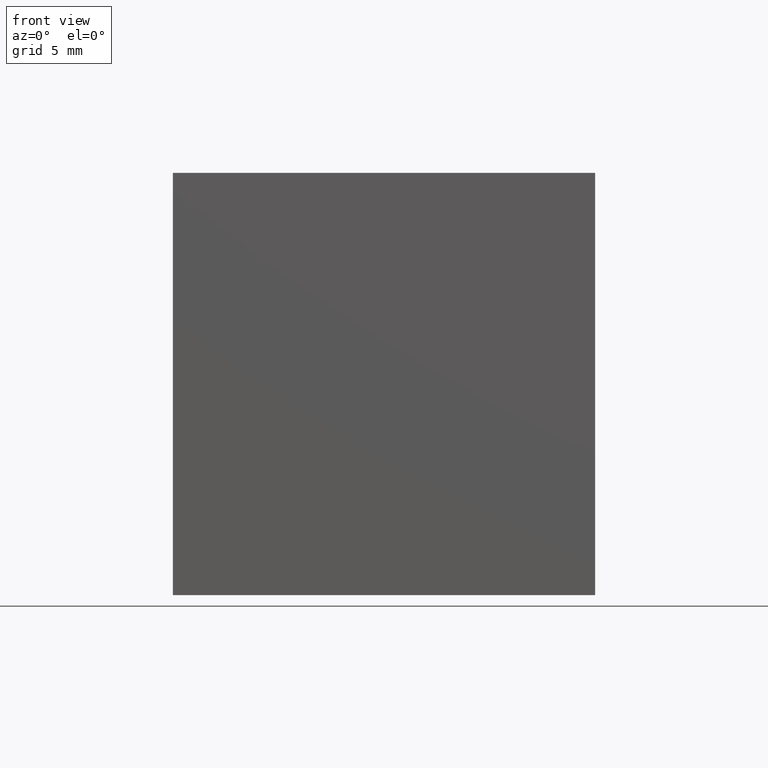
[diagram: clean part render]
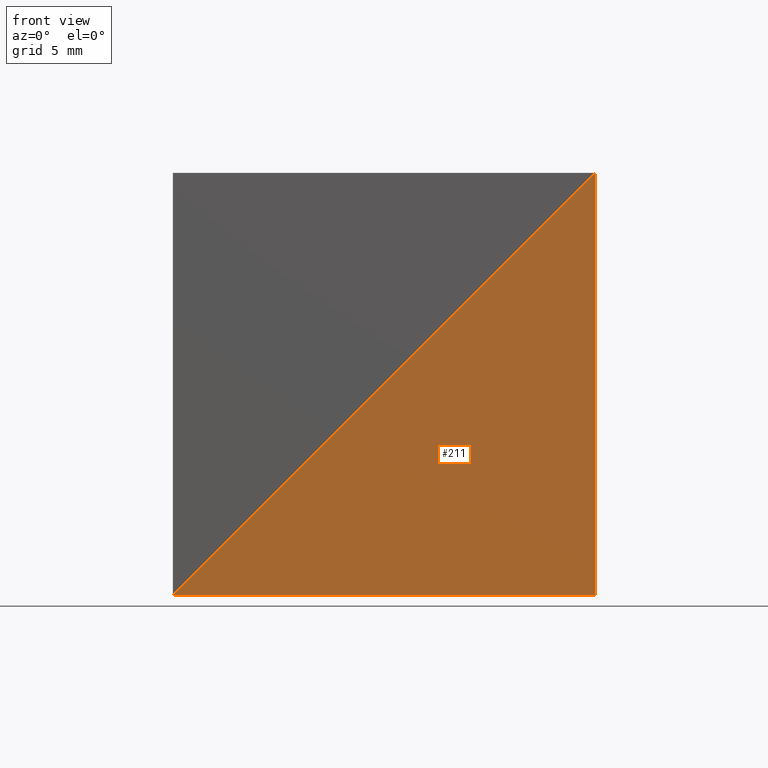
[diagram: same view with one face highlighted and labeled with its STEP entity id]
A machine part, front view. The second image highlights one B-rep face of the part: STEP entity #211.
In plain terms, the highlighted planar face has unit normal (-0, 1, 0).
Its self-contained STEP definition (entity closure, byte-faithful):
#20 = CARTESIAN_POINT ( 'NONE',  ( 0.0000000000000000000, 0.0000000000000000000, 0.0000000000000000000 ) ) ;
#31 = DIRECTION ( 'NONE',  ( -1.000000000000000000, 0.0000000000000000000, 0.0000000000000000000 ) ) ;
#32 = VERTEX_POINT ( 'NONE', #249 ) ;
#35 = ORIENTED_EDGE ( 'NONE', *, *, #264, .F. ) ;
#38 = CARTESIAN_POINT ( 'NONE',  ( -25.00000000000000000, 0.0000000000000000000, -25.00000000000000000 ) ) ;
#45 = DIRECTION ( 'NONE',  ( 0.0000000000000000000, 0.0000000000000000000, -1.000000000000000000 ) ) ;
#56 = VERTEX_POINT ( 'NONE', #243 ) ;
#63 = LINE ( 'NONE', #20, #261 ) ;
#74 = VECTOR ( 'NONE', #209, 1000.000000000000100 ) ;
#84 = AXIS2_PLACEMENT_3D ( 'NONE', #221, #252, #187 ) ;
#104 = LINE ( 'NONE', #38, #74 ) ;
#126 = CARTESIAN_POINT ( 'NONE',  ( 0.0000000000000000000, 0.0000000000000000000, 0.0000000000000000000 ) ) ;
#180 = ORIENTED_EDGE ( 'NONE', *, *, #225, .F. ) ;
#187 = DIRECTION ( 'NONE',  ( 0.0000000000000000000, -0.0000000000000000000, 1.000000000000000000 ) ) ;
#188 = VERTEX_POINT ( 'NONE', #126 ) ;
#209 = DIRECTION ( 'NONE',  ( 0.7071067811865474600, 0.0000000000000000000, 0.7071067811865474600 ) ) ;
#211 = ADVANCED_FACE ( 'NONE', ( #278 ), #235, .F. ) ;
#215 = ORIENTED_EDGE ( 'NONE', *, *, #254, .F. ) ;
#221 = CARTESIAN_POINT ( 'NONE',  ( 0.0000000000000000000, 0.0000000000000000000, 0.0000000000000000000 ) ) ;
#225 = EDGE_CURVE ( 'NONE', #56, #188, #104, .T. ) ;
#235 = PLANE ( 'NONE',  #84 ) ;
#236 = VECTOR ( 'NONE', #31, 1000.000000000000000 ) ;
#243 = CARTESIAN_POINT ( 'NONE',  ( -25.00000000000000000, 0.0000000000000000000, -25.00000000000000000 ) ) ;
#249 = CARTESIAN_POINT ( 'NONE',  ( 0.0000000000000000000, 0.0000000000000000000, -25.00000000000000000 ) ) ;
#252 = DIRECTION ( 'NONE',  ( -0.0000000000000000000, 1.000000000000000000, 0.0000000000000000000 ) ) ;
#254 = EDGE_CURVE ( 'NONE', #188, #32, #63, .T. ) ;
#261 = VECTOR ( 'NONE', #45, 1000.000000000000000 ) ;
#264 = EDGE_CURVE ( 'NONE', #32, #56, #274, .T. ) ;
#274 = LINE ( 'NONE', #290, #236 ) ;
#275 = EDGE_LOOP ( 'NONE', ( #180, #35, #215 ) ) ;
#278 = FACE_OUTER_BOUND ( 'NONE', #275, .T. ) ;
#290 = CARTESIAN_POINT ( 'NONE',  ( 0.0000000000000000000, 0.0000000000000000000, -25.00000000000000000 ) ) ;